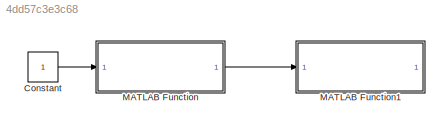
MODEL slx_4dd57c3e3c68
KIND model
CONFIG AbsTol = auto
CONFIG EnableMultiTasking = off
CONFIG FixedStep = 0.01
CONFIG MaxStep = auto
CONFIG MinStep = auto
CONFIG RelTol = 1e-3
CONFIG SampleTimeConstraint = Unconstrained
CONFIG Solver = ode4
CONFIG SolverName = ode4
CONFIG StartTime = 0.0
CONFIG StopTime = 1
BLOCK [Constant] Constant
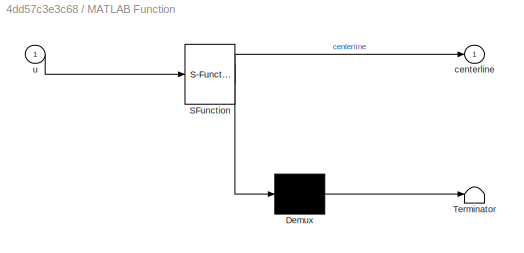
BLOCK [SubSystem] MATLAB Function
  ErrorFcn = Stateflow.Translate.translate
  PermitHierarchicalResolution = ExplicitOnly
  Ports = [1, 1]
  RequestExecContextInheritance = off
  SFBlockType = MATLAB Function
  TreatAsAtomicUnit = on
BLOCK [Demux] MATLAB Function/ Demux 
  Outputs = 1
  Ports = [1, 1]
BLOCK [S-Function] MATLAB Function/ SFunction 
  EnableBusSupport = on
  FunctionName = sf_sfun
  PortCounts = [1 2]
  Ports = [1, 2]
  SFcnIsStateOwnerBlock = off
  SFunctionDeploymentMode = off
  Tag = Stateflow S-Function 2
BLOCK [Terminator] MATLAB Function/ Terminator 
BLOCK [Outport] MATLAB Function/centerline
  IconDisplay = Port number
BLOCK [Inport] MATLAB Function/u
  IconDisplay = Port number
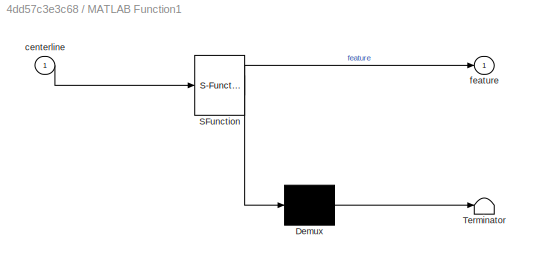
BLOCK [SubSystem] MATLAB Function1
  ErrorFcn = Stateflow.Translate.translate
  PermitHierarchicalResolution = ExplicitOnly
  Ports = [1, 1]
  RequestExecContextInheritance = off
  SFBlockType = MATLAB Function
  TreatAsAtomicUnit = on
BLOCK [Demux] MATLAB Function1/ Demux 
  Outputs = 1
  Ports = [1, 1]
BLOCK [S-Function] MATLAB Function1/ SFunction 
  EnableBusSupport = on
  FunctionName = sf_sfun
  PortCounts = [1 2]
  Ports = [1, 2]
  SFcnIsStateOwnerBlock = off
  SFunctionDeploymentMode = off
  Tag = Stateflow S-Function 1
BLOCK [Terminator] MATLAB Function1/ Terminator 
BLOCK [Inport] MATLAB Function1/centerline
  IconDisplay = Port number
BLOCK [Outport] MATLAB Function1/feature
  IconDisplay = Port number
LINE Constant:1 -> MATLAB Function:1
LINE MATLAB Function:1 -> MATLAB Function1:1
CHART MATLAB Function1 states=1 transitions=1
  STATE_LABEL 'eML_blk_kernel()'
  STATE_LABEL "SCRIPT:\nfunction feature  = fcn(centerline)\nfeature = zeros(14,1);\n% x = zeros(50,1);\n% y = zeros(50,1);\n% state0 = [0.1 0 deg2rad(45)];\n% state1 = [0.5 0 deg2rad(-45)];\n% coder.extrinsic('dlodynamics_2D')\n% [centerline,~,~] = dlodynamics_2D(state0,state1,1,[],2);\n% x = 1;\n% y = 1;\n% x = centerline(:,1)';\n% y = centerline(:,2)';\n% plot(centerline(:,1),centerline(:,2))\n\n[feature,~,~] = LSM_analytic...<+35ch>"
CHART MATLAB Function states=1 transitions=1
  STATE_LABEL 'eML_blk_kernel()'
  STATE_LABEL "SCRIPT:\nfunction centerline  = fcn(u)\n\ncenterline = zeros(50,2);\n% x = zeros(50,1);\n% y = zeros(50,1);\nstate0 = [0.1 0 deg2rad(45)];\nstate1 = [0.5 0 deg2rad(-45)];\ncoder.extrinsic('dlodynamics_2D')\n[centerline,~,~] = dlodynamics_2D(state0,state1,1,[],2);\n% x = 1;\n% y = 1;\n% x = centerline(:,1)';\n% y = centerline(:,2)';\nend\n"
